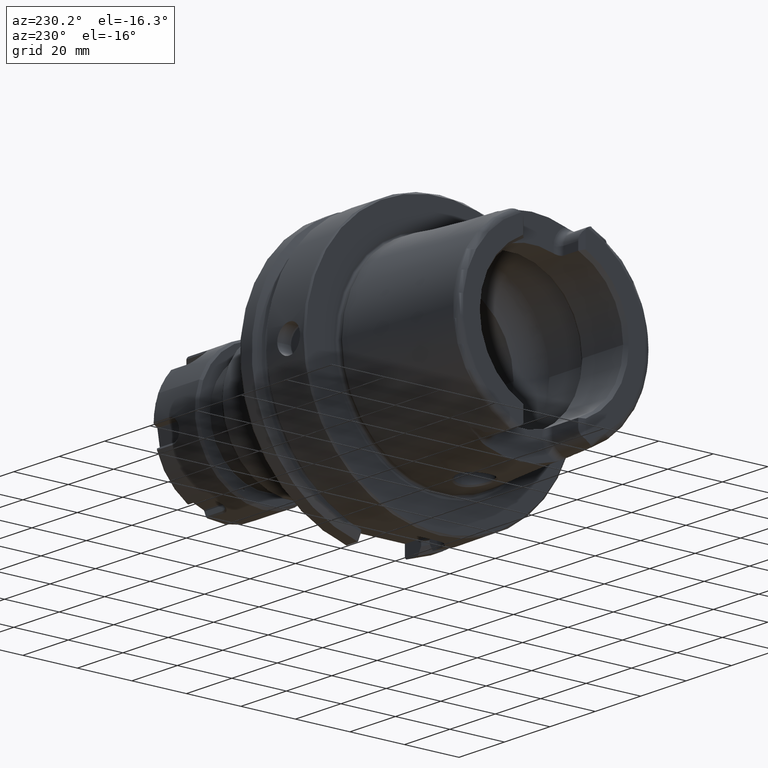
[diagram: clean part render]
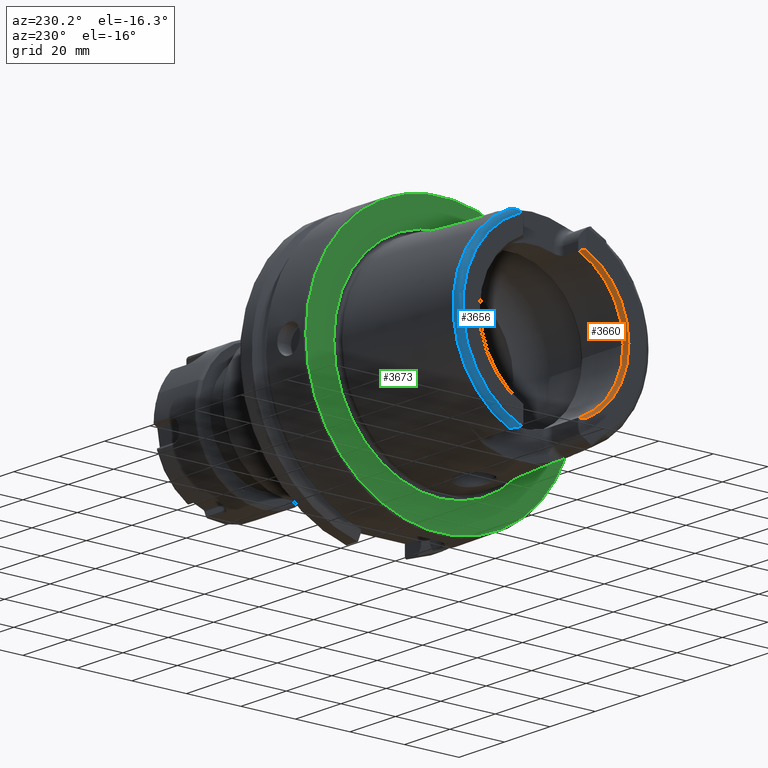
[diagram: same view with three faces highlighted in distinct colors, each labeled with its STEP entity id]
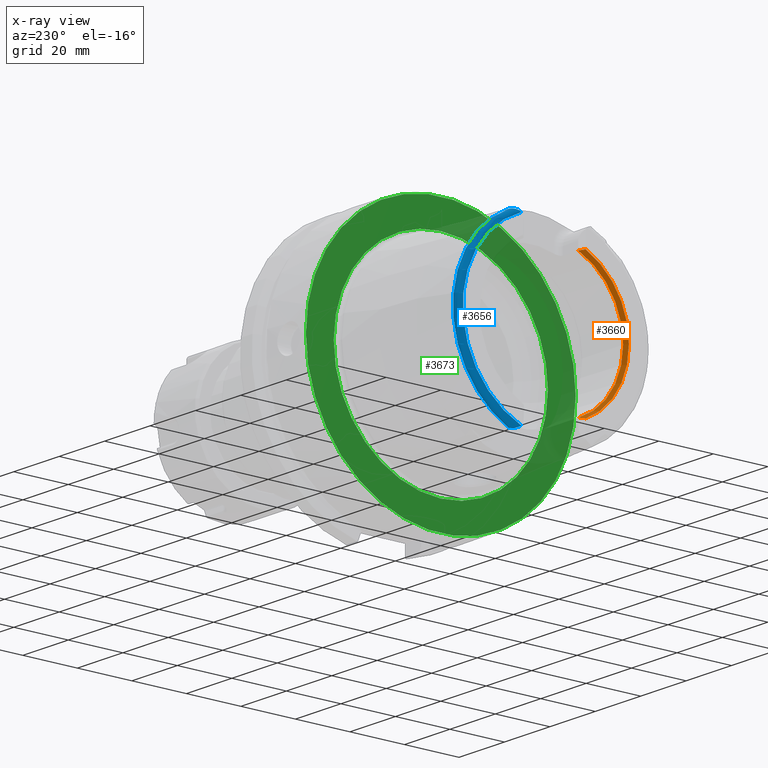
[diagram: x-ray of the same camera — body ghosted, the three highlighted faces saturated]
A machine part, auxiliary view with three faces highlighted in distinct colors.
The next image is the same camera in x-ray (body ghosted, the three faces saturated) — at least one of them is partly hidden behind the body in this view.
Their STEP definitions:

[orange] entity #3660 — the highlighted conical surface has half-angle 30 deg.
#176=ELLIPSE('',#3900,43.9552929417008,25.3776002121998);
#178=ELLIPSE('',#3908,43.9552929417008,25.3776002121998);
#189=CONICAL_SURFACE('',#4060,26.9330127018922,0.523598775598298);
#436=FACE_OUTER_BOUND('',#649,.T.);
#649=EDGE_LOOP('',(#2920,#2921,#2922,#2923,#2924));
#1274=CIRCLE('',#4046,26.5);
#1276=CIRCLE('',#4048,26.5);
#1281=CIRCLE('',#4059,27.3660254037844);
#1456=VERTEX_POINT('',#5560);
#1457=VERTEX_POINT('',#5562);
#1467=VERTEX_POINT('',#5615);
#1468=VERTEX_POINT('',#5617);
#1605=VERTEX_POINT('',#6848);
#1855=EDGE_CURVE('',#1456,#1457,#176,.T.);
#1868=EDGE_CURVE('',#1467,#1468,#178,.T.);
#2076=EDGE_CURVE('',#1467,#1605,#1274,.T.);
#2078=EDGE_CURVE('',#1605,#1457,#1276,.T.);
#2083=EDGE_CURVE('',#1456,#1468,#1281,.T.);
#2920=ORIENTED_EDGE('',*,*,#1855,.F.);
#2921=ORIENTED_EDGE('',*,*,#2083,.T.);
#2922=ORIENTED_EDGE('',*,*,#1868,.F.);
#2923=ORIENTED_EDGE('',*,*,#2076,.T.);
#2924=ORIENTED_EDGE('',*,*,#2078,.T.);
#3660=ADVANCED_FACE('',(#436),#189,.F.);
#3900=AXIS2_PLACEMENT_3D('',#5563,#4442,#4443);
#3908=AXIS2_PLACEMENT_3D('',#5618,#4464,#4465);
#4046=AXIS2_PLACEMENT_3D('',#6850,#4809,#4810);
#4048=AXIS2_PLACEMENT_3D('',#6852,#4813,#4814);
#4059=AXIS2_PLACEMENT_3D('',#6863,#4835,#4836);
#4060=AXIS2_PLACEMENT_3D('',#6864,#4837,#4838);
#4442=DIRECTION('center_axis',(0.707106781186546,-0.707106781186549,0.));
#4443=DIRECTION('ref_axis',(0.707106781186549,0.707106781186546,0.));
#4464=DIRECTION('center_axis',(0.707106781186546,-0.707106781186549,0.));
#4465=DIRECTION('ref_axis',(0.707106781186549,0.707106781186546,0.));
#4809=DIRECTION('center_axis',(1.,0.,0.));
#4810=DIRECTION('ref_axis',(0.,-1.,0.));
#4813=DIRECTION('center_axis',(1.,0.,0.));
#4814=DIRECTION('ref_axis',(0.,-1.,0.));
#4835=DIRECTION('center_axis',(-1.,0.,0.));
#4836=DIRECTION('ref_axis',(0.,-1.,0.));
#4837=DIRECTION('center_axis',(-1.,0.,0.));
#4838=DIRECTION('ref_axis',(0.,-1.,0.));
#5560=CARTESIAN_POINT('',(-50.,-11.51,-24.8277918148307));
#5562=CARTESIAN_POINT('',(-48.5,-10.01,-24.5367051577835));
#5563=CARTESIAN_POINT('Origin',(-56.4346732002877,-17.9446732002876,0.));
#5615=CARTESIAN_POINT('',(-48.5,-10.01,24.5367051577835));
#5617=CARTESIAN_POINT('',(-50.,-11.51,24.8277918148307));
#5618=CARTESIAN_POINT('Origin',(-56.4346732002877,-17.9446732002876,0.));
#6848=CARTESIAN_POINT('',(-48.5,-26.5,3.24531401774049E-15));
#6850=CARTESIAN_POINT('Origin',(-48.5,0.,0.));
#6852=CARTESIAN_POINT('Origin',(-48.5,0.,0.));
#6863=CARTESIAN_POINT('Origin',(-50.,0.,0.));
#6864=CARTESIAN_POINT('Origin',(-49.25,0.,0.));

[blue] entity #3656 — the highlighted toroidal blend (fillet) surface has major radius 33.6002 mm and minor (blend) radius 2 mm.
#59=B_SPLINE_CURVE_WITH_KNOTS('',3,(#5520,#5521,#5522,#5523,#5524,#5525,
#5526,#5527,#5528,#5529,#5530,#5531),.UNSPECIFIED.,.F.,.F.,(4,2,2,2,2,4),
(-0.744485085130371,-0.701284148098642,-0.656581713087942,-0.531183195108755,
-0.406814905045421,-0.32076786300396),.UNSPECIFIED.);
#66=B_SPLINE_CURVE_WITH_KNOTS('',3,(#5676,#5677,#5678,#5679,#5680,#5681,
#5682,#5683,#5684,#5685,#5686,#5687),.UNSPECIFIED.,.F.,.F.,(4,2,2,2,2,4),
(-0.330492941280221,-0.267730672592689,-0.159783637268103,-0.0785649842435394,
-0.0319753598823862,-6.79221864796145E-5),.UNSPECIFIED.);
#322=TOROIDAL_SURFACE('',#4054,33.6001839277785,2.);
#432=FACE_OUTER_BOUND('',#645,.T.);
#645=EDGE_LOOP('',(#2902,#2903,#2904,#2905));
#1210=CIRCLE('',#3925,35.5976786130245);
#1279=CIRCLE('',#4053,33.6001839277785);
#1449=VERTEX_POINT('',#5517);
#1450=VERTEX_POINT('',#5519);
#1480=VERTEX_POINT('',#5666);
#1481=VERTEX_POINT('',#5675);
#1848=EDGE_CURVE('',#1450,#1449,#59,.T.);
#1884=EDGE_CURVE('',#1481,#1480,#66,.T.);
#1903=EDGE_CURVE('',#1450,#1480,#1210,.T.);
#2081=EDGE_CURVE('',#1449,#1481,#1279,.T.);
#2902=ORIENTED_EDGE('',*,*,#1884,.T.);
#2903=ORIENTED_EDGE('',*,*,#1903,.F.);
#2904=ORIENTED_EDGE('',*,*,#1848,.T.);
#2905=ORIENTED_EDGE('',*,*,#2081,.T.);
#3656=ADVANCED_FACE('',(#432),#322,.T.);
#3925=AXIS2_PLACEMENT_3D('',#5926,#4509,#4510);
#4053=AXIS2_PLACEMENT_3D('',#6857,#4823,#4824);
#4054=AXIS2_PLACEMENT_3D('',#6858,#4825,#4826);
#4509=DIRECTION('center_axis',(1.,0.,0.));
#4510=DIRECTION('ref_axis',(0.,0.,-1.));
#4823=DIRECTION('center_axis',(1.,0.,0.));
#4824=DIRECTION('ref_axis',(0.,0.,-1.));
#4825=DIRECTION('center_axis',(1.,0.,0.));
#4826=DIRECTION('ref_axis',(0.,0.,-1.));
#5517=CARTESIAN_POINT('',(-50.,12.0743049948301,-31.355757348091));
#5519=CARTESIAN_POINT('',(-48.1000748840304,15.0787152148571,-32.2463497175327));
#5520=CARTESIAN_POINT('Ctrl Pts',(-48.1000748840304,15.0787152148571,-32.2463497175327));
#5521=CARTESIAN_POINT('Ctrl Pts',(-48.2105289331959,15.0644723890649,-32.2469009162952));
#5522=CARTESIAN_POINT('Ctrl Pts',(-48.3152849211513,15.0274043790922,-32.2483365520296));
#5523=CARTESIAN_POINT('Ctrl Pts',(-48.5158350355592,14.9227249886344,-32.2501807122049));
#5524=CARTESIAN_POINT('Ctrl Pts',(-48.6114759122292,14.8539486337751,-32.2504380099703));
#5525=CARTESIAN_POINT('Ctrl Pts',(-48.9444340259589,14.5699075364914,-32.2439932048825));
#5526=CARTESIAN_POINT('Ctrl Pts',(-49.1873237794489,14.2618237213855,-32.2229124522755));
#5527=CARTESIAN_POINT('Ctrl Pts',(-49.6096022065355,13.5557805634606,-32.0777680620402));
#5528=CARTESIAN_POINT('Ctrl Pts',(-49.7790094341757,13.1775605707035,-31.9575317726829));
#5529=CARTESIAN_POINT('Ctrl Pts',(-49.9573633441756,12.558596693048,-31.6661869684752));
#5530=CARTESIAN_POINT('Ctrl Pts',(-50.,12.3094122367882,-31.5218463066117));
#5531=CARTESIAN_POINT('Ctrl Pts',(-50.,12.0743049948301,-31.355757348091));
#5666=CARTESIAN_POINT('',(-48.1000748840304,15.0787152148571,32.2463497175327));
#5675=CARTESIAN_POINT('',(-50.,12.0743049948301,31.355757348091));
#5676=CARTESIAN_POINT('Ctrl Pts',(-50.,12.0743049948301,31.355757348091));
#5677=CARTESIAN_POINT('Ctrl Pts',(-50.,12.2864160042029,31.5056008677721));
#5678=CARTESIAN_POINT('Ctrl Pts',(-49.9651812414519,12.5182840828269,31.6438016135977));
#5679=CARTESIAN_POINT('Ctrl Pts',(-49.7800952926341,13.1934814711232,31.9701190766009));
#5680=CARTESIAN_POINT('Ctrl Pts',(-49.5793805506894,13.6220310736951,32.0976134655659));
#5681=CARTESIAN_POINT('Ctrl Pts',(-49.170216000735,14.2749893309021,32.2194840260055));
#5682=CARTESIAN_POINT('Ctrl Pts',(-48.9762638716763,14.5215824129495,32.2396097025416));
#5683=CARTESIAN_POINT('Ctrl Pts',(-48.6666306582889,14.8133702905837,32.2505591140316));
#5684=CARTESIAN_POINT('Ctrl Pts',(-48.5389792055843,14.9127554064334,32.2504492219699));
#5685=CARTESIAN_POINT('Ctrl Pts',(-48.3058528414878,15.0307034754738,32.2482068363322));
#5686=CARTESIAN_POINT('Ctrl Pts',(-48.2055479344945,15.0651146787529,32.2468760596209));
#5687=CARTESIAN_POINT('Ctrl Pts',(-48.1000748840303,15.0787152148571,32.2463497175327));
#5926=CARTESIAN_POINT('Origin',(-48.1000748840304,0.,0.));
#6857=CARTESIAN_POINT('Origin',(-50.,0.,0.));
#6858=CARTESIAN_POINT('Origin',(-48.,0.,0.));

[green] entity #3673 — the highlighted planar face has unit normal (-1, 0, 0).
#217=FACE_BOUND('',#666,.T.);
#262=PLANE('',#4103);
#449=FACE_OUTER_BOUND('',#665,.T.);
#665=EDGE_LOOP('',(#3000,#3001));
#666=EDGE_LOOP('',(#3002,#3003));
#1310=CIRCLE('',#4101,39.2747800249997);
#1311=CIRCLE('',#4102,39.2747800249997);
#1312=CIRCLE('',#4104,49.5);
#1313=CIRCLE('',#4105,49.5);
#1630=VERTEX_POINT('',#6933);
#1631=VERTEX_POINT('',#6935);
#1632=VERTEX_POINT('',#6939);
#1633=VERTEX_POINT('',#6940);
#2117=EDGE_CURVE('',#1631,#1630,#1310,.T.);
#2118=EDGE_CURVE('',#1630,#1631,#1311,.T.);
#2119=EDGE_CURVE('',#1632,#1633,#1312,.T.);
#2120=EDGE_CURVE('',#1633,#1632,#1313,.T.);
#3000=ORIENTED_EDGE('',*,*,#2119,.F.);
#3001=ORIENTED_EDGE('',*,*,#2120,.F.);
#3002=ORIENTED_EDGE('',*,*,#2117,.T.);
#3003=ORIENTED_EDGE('',*,*,#2118,.T.);
#3673=ADVANCED_FACE('',(#449,#217),#262,.T.);
#4101=AXIS2_PLACEMENT_3D('',#6936,#4924,#4925);
#4102=AXIS2_PLACEMENT_3D('',#6937,#4926,#4927);
#4103=AXIS2_PLACEMENT_3D('',#6938,#4928,#4929);
#4104=AXIS2_PLACEMENT_3D('',#6941,#4930,#4931);
#4105=AXIS2_PLACEMENT_3D('',#6942,#4932,#4933);
#4924=DIRECTION('center_axis',(1.,0.,0.));
#4925=DIRECTION('ref_axis',(0.,0.,-1.));
#4926=DIRECTION('center_axis',(1.,0.,0.));
#4927=DIRECTION('ref_axis',(0.,0.,-1.));
#4928=DIRECTION('center_axis',(-1.,0.,0.));
#4929=DIRECTION('ref_axis',(0.,0.,1.));
#4930=DIRECTION('center_axis',(1.,0.,0.));
#4931=DIRECTION('ref_axis',(0.,0.,-1.));
#4932=DIRECTION('center_axis',(1.,0.,0.));
#4933=DIRECTION('ref_axis',(0.,0.,-1.));
#6933=CARTESIAN_POINT('',(-1.11889664200504E-15,-39.2747800249997,-4.80977336448322E-15));
#6935=CARTESIAN_POINT('',(0.,39.2747800249997,0.));
#6936=CARTESIAN_POINT('Origin',(0.,0.,0.));
#6937=CARTESIAN_POINT('Origin',(0.,0.,0.));
#6938=CARTESIAN_POINT('Origin',(0.,49.5,0.));
#6939=CARTESIAN_POINT('',(0.,49.5,0.));
#6940=CARTESIAN_POINT('',(1.2490009027033E-15,-49.5,-6.0620016557794E-15));
#6941=CARTESIAN_POINT('Origin',(0.,0.,0.));
#6942=CARTESIAN_POINT('Origin',(0.,0.,0.));